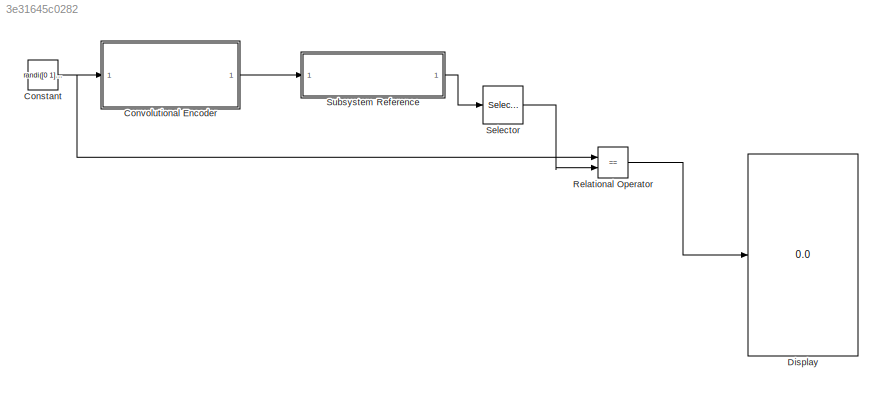
MODEL slx_3e31645c0282
KIND model
CONFIG AbsTol = auto
CONFIG EnableMultiTasking = off
CONFIG FixedStep = auto
CONFIG MaxStep = auto
CONFIG MinStep = auto
CONFIG RelTol = 1e-3
CONFIG SampleTimeConstraint = Unconstrained
CONFIG SolverName = VariableStepAuto
CONFIG StartTime = 0.0
CONFIG StopTime = 10.0
BLOCK [Constant] Constant
  Value = randi([0 1], 206,1)
  VectorParams1D = off
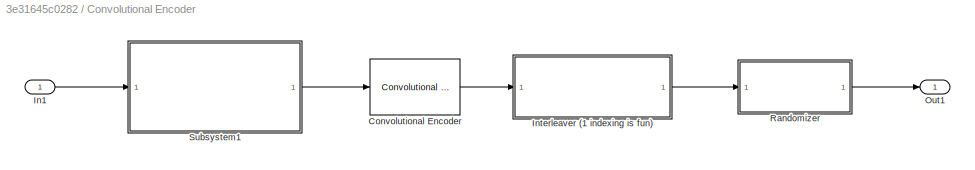
BLOCK [SubSystem] Convolutional Encoder
BLOCK [Reference] Convolutional Encoder/Convolutional Encoder  REF=commcnvcod2/Convolutional
Encoder
  SourceBlock = commcnvcod2/Convolutional\nEncoder
  SourceType = Convolutional Encoder
BLOCK [Inport] Convolutional Encoder/In1
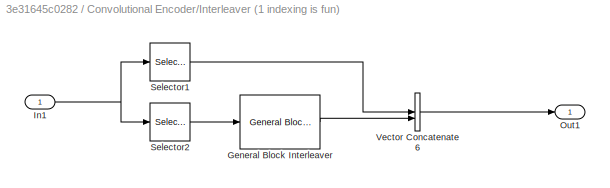
BLOCK [SubSystem] Convolutional Encoder/Interleaver (1 indexing is fun)
BLOCK [Reference] Convolutional Encoder/Interleaver (1 indexing is fun)/General Block Interleaver  REF=commblkintrlv2/General Block
Interleaver
  SourceBlock = commblkintrlv2/General Block\nInterleaver
  SourceType = General Block Interleaver
  StatePerturbationForJacobian = 1.0e-05
BLOCK [Inport] Convolutional Encoder/Interleaver (1 indexing is fun)/In1
BLOCK [Outport] Convolutional Encoder/Interleaver (1 indexing is fun)/Out1
BLOCK [Selector] Convolutional Encoder/Interleaver (1 indexing is fun)/Selector1
  IndexOptions = Index vector (dialog)
  Indices = [1]
  OutputSizes = 1
BLOCK [Selector] Convolutional Encoder/Interleaver (1 indexing is fun)/Selector2
  IndexOptions = Index vector (dialog)
  Indices = [2:368]
  OutputSizes = 1
BLOCK [Concatenate] Convolutional Encoder/Interleaver (1 indexing is fun)/Vector Concatenate6
BLOCK [Outport] Convolutional Encoder/Out1
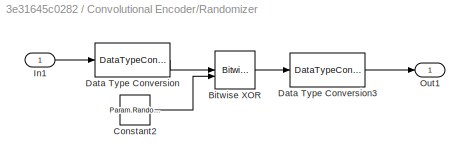
BLOCK [SubSystem] Convolutional Encoder/Randomizer
BLOCK [Reference] Convolutional Encoder/Randomizer/Bitwise XOR  REF=simulink/Logic and Bit
Operations/Bitwise
Operator
  SourceBlock = simulink/Logic and Bit\nOperations/Bitwise\nOperator
  SourceType = Bitwise Operator
BLOCK [Constant] Convolutional Encoder/Randomizer/Constant2
  Value = Param.RandomizeHex
  VectorParams1D = off
BLOCK [DataTypeConversion] Convolutional Encoder/Randomizer/Data Type Conversion
  OutDataTypeStr = boolean
  RndMeth = Floor
  SaturateOnIntegerOverflow = off
BLOCK [DataTypeConversion] Convolutional Encoder/Randomizer/Data Type Conversion3
  OutDataTypeStr = double
  RndMeth = Floor
  SaturateOnIntegerOverflow = off
BLOCK [Inport] Convolutional Encoder/Randomizer/In1
BLOCK [Outport] Convolutional Encoder/Randomizer/Out1
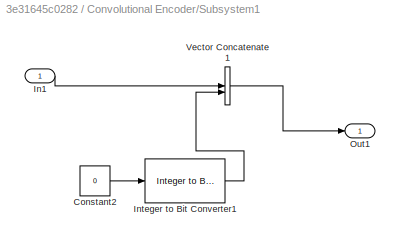
BLOCK [SubSystem] Convolutional Encoder/Subsystem1
BLOCK [Constant] Convolutional Encoder/Subsystem1/Constant2
  Value = 0
BLOCK [Inport] Convolutional Encoder/Subsystem1/In1
BLOCK [Reference] Convolutional Encoder/Subsystem1/Integer to Bit Converter1  REF=simulink/Logic and Bit
Operations/Integer to Bit
Converter
  SourceBlock = simulink/Logic and Bit\nOperations/Integer to Bit\nConverter
  SourceType = Integer to Bit Converter
BLOCK [Outport] Convolutional Encoder/Subsystem1/Out1
BLOCK [Concatenate] Convolutional Encoder/Subsystem1/Vector Concatenate1
BLOCK [Display] Display
  Decimation = 1
BLOCK [RelationalOperator] Relational Operator
  InputSameDT = off
  Operator = ==
  OutDataTypeStr = boolean
  RndMeth = Simplest
BLOCK [Selector] Selector
  IndexOptions = Index vector (dialog)
  Indices = [1:206]
  OutputSizes = 1
BLOCK [SubSystem] Subsystem Reference
  ReferencedSubsystem = ConvolutionalDecoding
NET Constant:1 -> Convolutional Encoder:1, Relational Operator:1
LINE Convolutional Encoder/Convolutional Encoder:1 -> Convolutional Encoder/Interleaver (1 indexing is fun):1
LINE Convolutional Encoder/In1:1 -> Convolutional Encoder/Subsystem1:1
LINE Convolutional Encoder/Interleaver (1 indexing is fun)/General Block Interleaver:1 -> Convolutional Encoder/Interleaver (1 indexing is fun)/Vector Concatenate6:2
NET Convolutional Encoder/Interleaver (1 indexing is fun)/In1:1 -> Convolutional Encoder/Interleaver (1 indexing is fun)/Selector1:1, Convolutional Encoder/Interleaver (1 indexing is fun)/Selector2:1
LINE Convolutional Encoder/Interleaver (1 indexing is fun)/Selector1:1 -> Convolutional Encoder/Interleaver (1 indexing is fun)/Vector Concatenate6:1
LINE Convolutional Encoder/Interleaver (1 indexing is fun)/Selector2:1 -> Convolutional Encoder/Interleaver (1 indexing is fun)/General Block Interleaver:1
LINE Convolutional Encoder/Interleaver (1 indexing is fun)/Vector Concatenate6:1 -> Convolutional Encoder/Interleaver (1 indexing is fun)/Out1:1
LINE Convolutional Encoder/Interleaver (1 indexing is fun):1 -> Convolutional Encoder/Randomizer:1
LINE Convolutional Encoder/Randomizer/Bitwise XOR:1 -> Convolutional Encoder/Randomizer/Data Type Conversion3:1
LINE Convolutional Encoder/Randomizer/Constant2:1 -> Convolutional Encoder/Randomizer/Bitwise XOR:2
LINE Convolutional Encoder/Randomizer/Data Type Conversion3:1 -> Convolutional Encoder/Randomizer/Out1:1
LINE Convolutional Encoder/Randomizer/Data Type Conversion:1 -> Convolutional Encoder/Randomizer/Bitwise XOR:1
LINE Convolutional Encoder/Randomizer/In1:1 -> Convolutional Encoder/Randomizer/Data Type Conversion:1
LINE Convolutional Encoder/Randomizer:1 -> Convolutional Encoder/Out1:1
LINE Convolutional Encoder/Subsystem1/Constant2:1 -> Convolutional Encoder/Subsystem1/Integer to Bit Converter1:1
LINE Convolutional Encoder/Subsystem1/In1:1 -> Convolutional Encoder/Subsystem1/Vector Concatenate1:1
LINE Convolutional Encoder/Subsystem1/Integer to Bit Converter1:1 -> Convolutional Encoder/Subsystem1/Vector Concatenate1:2
LINE Convolutional Encoder/Subsystem1/Vector Concatenate1:1 -> Convolutional Encoder/Subsystem1/Out1:1
LINE Convolutional Encoder/Subsystem1:1 -> Convolutional Encoder/Convolutional Encoder:1
LINE Convolutional Encoder:1 -> Subsystem Reference:1
LINE Relational Operator:1 -> Display:1
LINE Selector:1 -> Relational Operator:2
LINE Subsystem Reference:1 -> Selector:1
note: NET lines group one-source signal fan-out (src -> all destinations, sorted); 1:1 wires keep LINE
